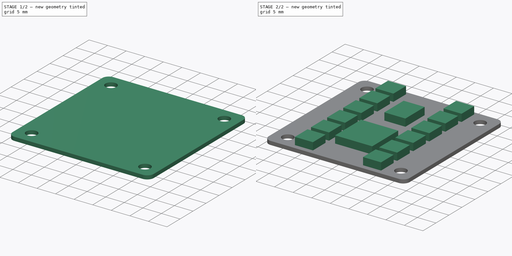
[diagram: build sequence overview — one tinted view per stage of 2, left to right]
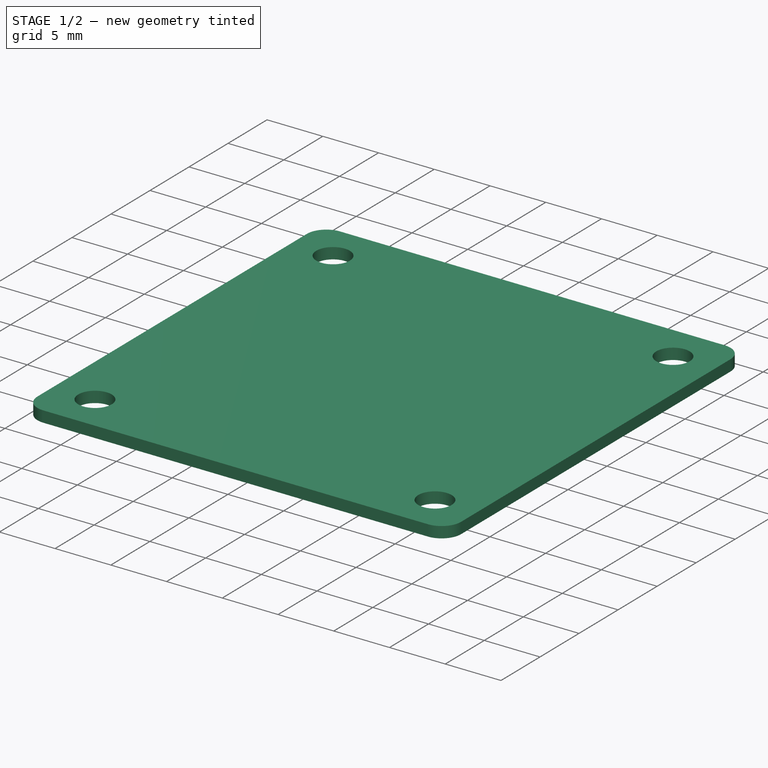
[diagram: stage 1 of 2 — iso view after this stage's code; geometry added in this stage tinted green]
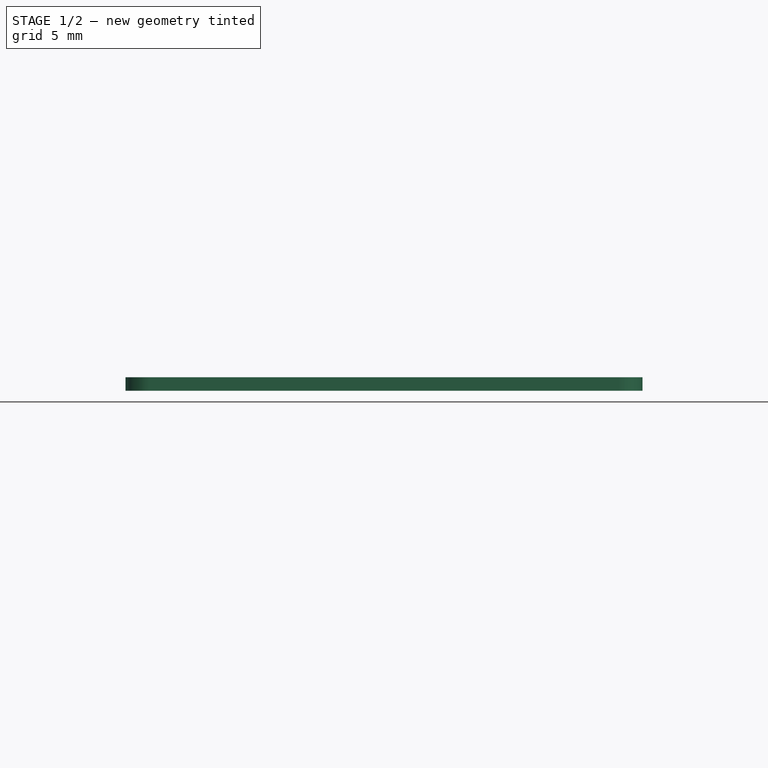
[diagram: stage 1 of 2 — front view after this stage's code; geometry added in this stage tinted green]
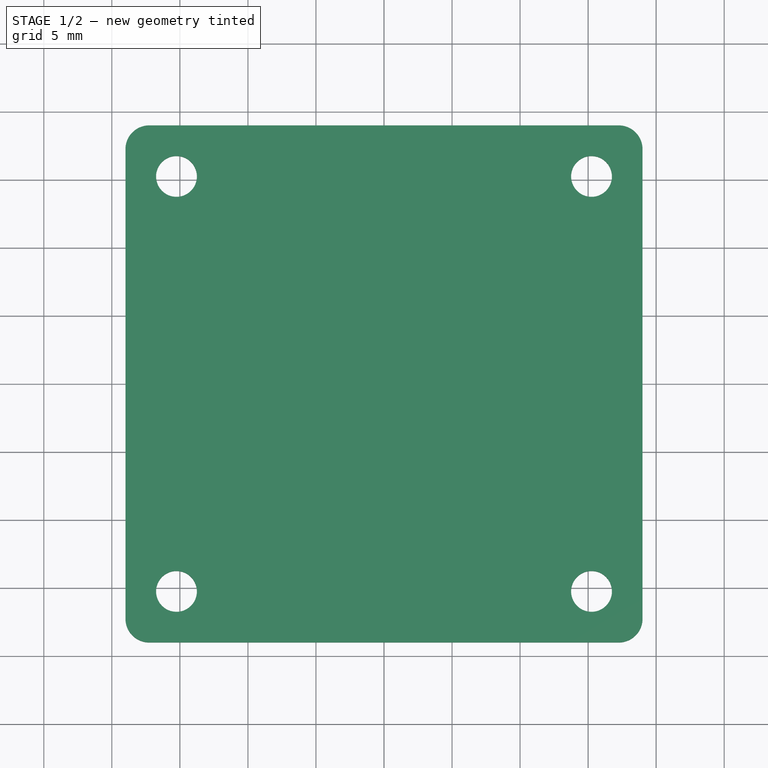
[diagram: stage 1 of 2 — top view after this stage's code; geometry added in this stage tinted green]
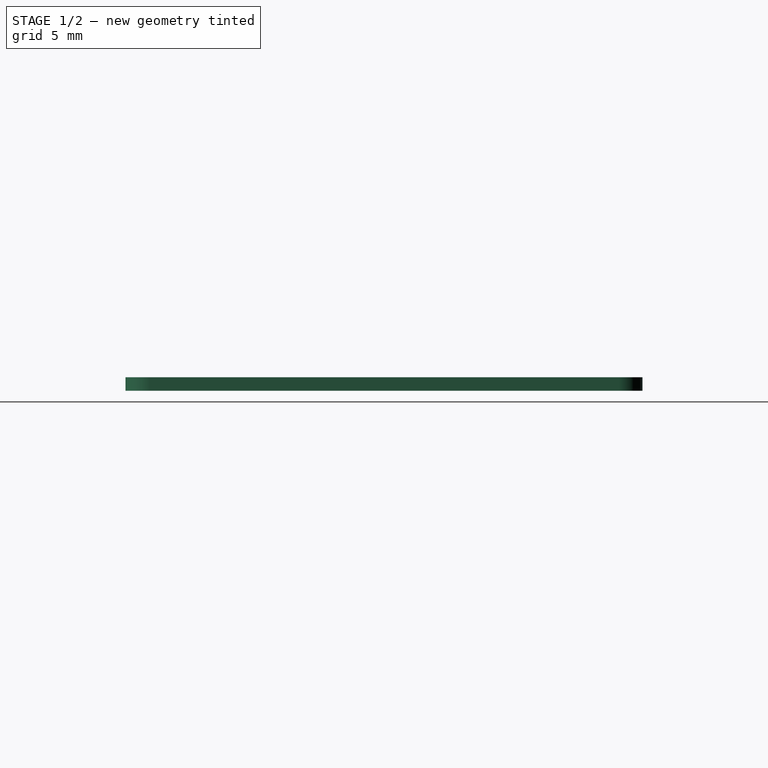
[diagram: stage 1 of 2 — right view after this stage's code; geometry added in this stage tinted green]
FCSTD DOCUMENT  (FreeCAD 0.18RUnknown)
Label: esc
License: All rights reserved
LicenseURL: http://en.wikipedia.org/wiki/All_rights_reserved
objects: Sketcher::SketchObject×2, PartDesign::Pad×2, PartDesign::Body×1
note: 7 computed .brp shape members not serialized (recipe doc carries the construction recipe); baked Part::Feature solids carry a one-line shape summary decoded from their .brp

FEATURE [Sketcher::SketchObject] Sketch
  MapMode = 5
  Support = -> [XY_Plane]
  sketch-geometry (16):
    g0: LineSegment StartX=-17.25 StartY=19 StartZ=0 EndX=17.25 EndY=19 EndZ=0
    g1: LineSegment StartX=19 StartY=17.25 StartZ=0 EndX=19 EndY=-17.25 EndZ=0
    g2: LineSegment StartX=17.25 StartY=-19 StartZ=0 EndX=-17.25 EndY=-19 EndZ=0
    g3: LineSegment StartX=-19 StartY=-17.25 StartZ=0 EndX=-19 EndY=17.25 EndZ=0
    g4: ArcOfCircle CenterX=17.25 CenterY=17.25 CenterZ=0 NormalX=0 NormalY=0 NormalZ=1 AngleXU=0 Radius=1.75 StartAngle=0 EndAngle=1.5708
    g5: ArcOfCircle CenterX=-17.25 CenterY=17.25 CenterZ=0 NormalX=0 NormalY=0 NormalZ=1 AngleXU=0 Radius=1.75 StartAngle=1.5708 EndAngle=3.14159
    g6: ArcOfCircle CenterX=-17.25 CenterY=-17.25 CenterZ=0 NormalX=0 NormalY=0 NormalZ=1 AngleXU=0 Radius=1.75 StartAngle=3.14159 EndAngle=4.71239
    g7: ArcOfCircle CenterX=17.25 CenterY=-17.25 CenterZ=0 NormalX=0 NormalY=0 NormalZ=1 AngleXU=0 Radius=1.75 StartAngle=4.71239 EndAngle=6.28319
    g8: Circle CenterX=15.25 CenterY=15.25 CenterZ=0 NormalX=0 NormalY=0 NormalZ=1 AngleXU=0 Radius=1.5
    g9: Circle CenterX=-15.25 CenterY=-15.25 CenterZ=0 NormalX=0 NormalY=0 NormalZ=1 AngleXU=0 Radius=1.5
    g10: Circle CenterX=-15.25 CenterY=15.25 CenterZ=0 NormalX=0 NormalY=0 NormalZ=1 AngleXU=0 Radius=1.5
    g11: Circle CenterX=15.25 CenterY=-15.25 CenterZ=0 NormalX=0 NormalY=0 NormalZ=1 AngleXU=0 Radius=1.5
    g12: LineSegment [constr] StartX=-15.25 StartY=15.25 StartZ=0 EndX=15.25 EndY=15.25 EndZ=0
    g13: LineSegment [constr] StartX=15.25 StartY=15.25 StartZ=0 EndX=15.25 EndY=-15.25 EndZ=0
    g14: LineSegment [constr] StartX=15.25 StartY=-15.25 StartZ=0 EndX=-15.25 EndY=-15.25 EndZ=0
    g15: LineSegment [constr] StartX=-15.25 StartY=-15.25 StartZ=0 EndX=-15.25 EndY=15.25 EndZ=0
  constraints (37):
    c: Horizontal(g0)
    c: Vertical(g1)
    c: Vertical(g3)
    c: Tangent(g0,g4) = 1.5708
    c: Tangent(g1,g4) = 1.5708
    c: Tangent(g3,g5) = 1.5708
    c: Tangent(g0,g5) = 1.5708
    c: Tangent(g3,g6) = 1.5708
    c: Tangent(g2,g6) = 1.5708
    c: Tangent(g2,g7) = 1.5708
    c: Tangent(g1,g7) = 1.5708
    c: DistanceY(g2,g0) = 38
    c: Symmetric(g0,g2,g-1)
    c: Symmetric(g0,g2,g-1)
    c: Equal(g4,g5)
    c: Equal(g5,g6)
    c: Radius(g7) = 1.75
    c: DistanceX(g3,g1) = 38
    c: DistanceX(g9,g11) = 30.5
    c: Symmetric(g8,g9,g-1)
    c: Symmetric(g11,g10,g-1)
    c: Equal(g10,g8)
    c: Equal(g8,g11)
    c: Equal(g11,g9)
    c: Radius(g8) = 1.5
    c: Coincident(g12,g13)
    c: Coincident(g13,g14)
    c: Coincident(g14,g15)
    c: Coincident(g15,g12)
    c: Horizontal(g12)
    c: Horizontal(g14)
    c: Vertical(g13)
    c: Vertical(g15)
    c: Coincident(g12,g10)
    c: Coincident(g13,g11)
    c: Coincident(g14,g9)
    c: Equal(g13,g14)
FEATURE [PartDesign::Pad] Pad
  Length = 1
  Length2 = 100
  Profile = -> Sketch
  Type = 0
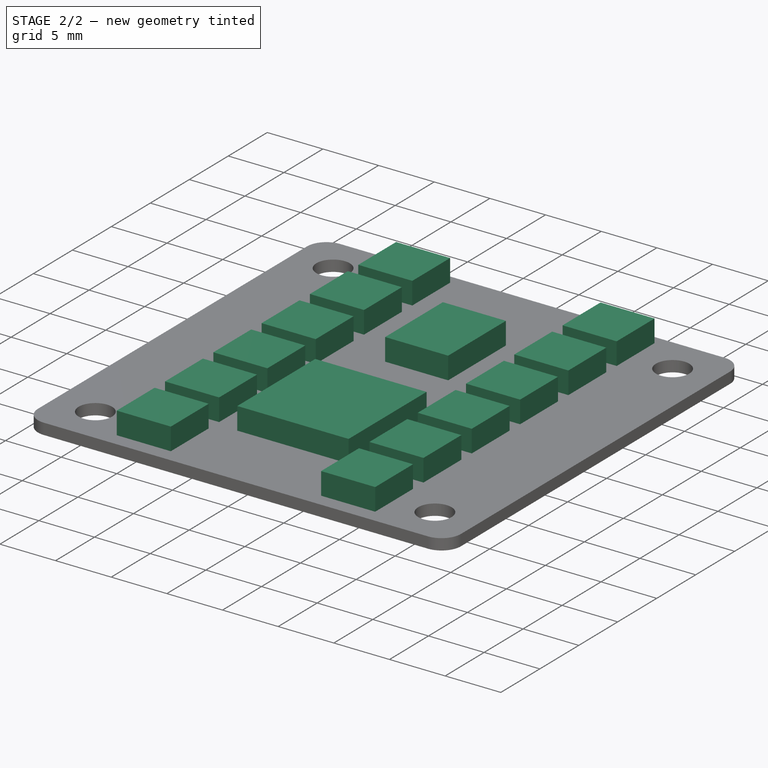
[diagram: stage 2 of 2 — iso view after this stage's code; geometry added in this stage tinted green]
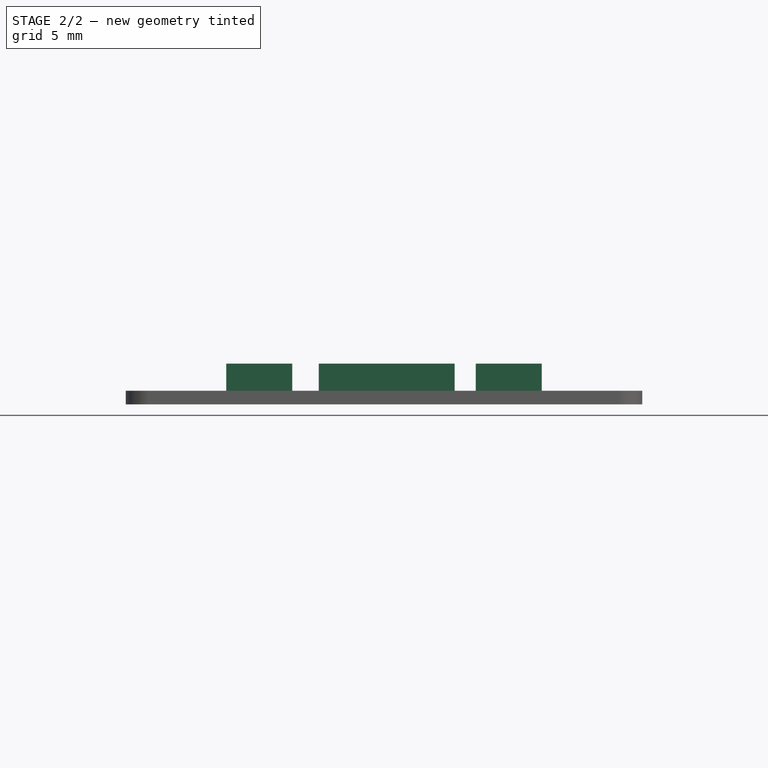
[diagram: stage 2 of 2 — front view after this stage's code; geometry added in this stage tinted green]
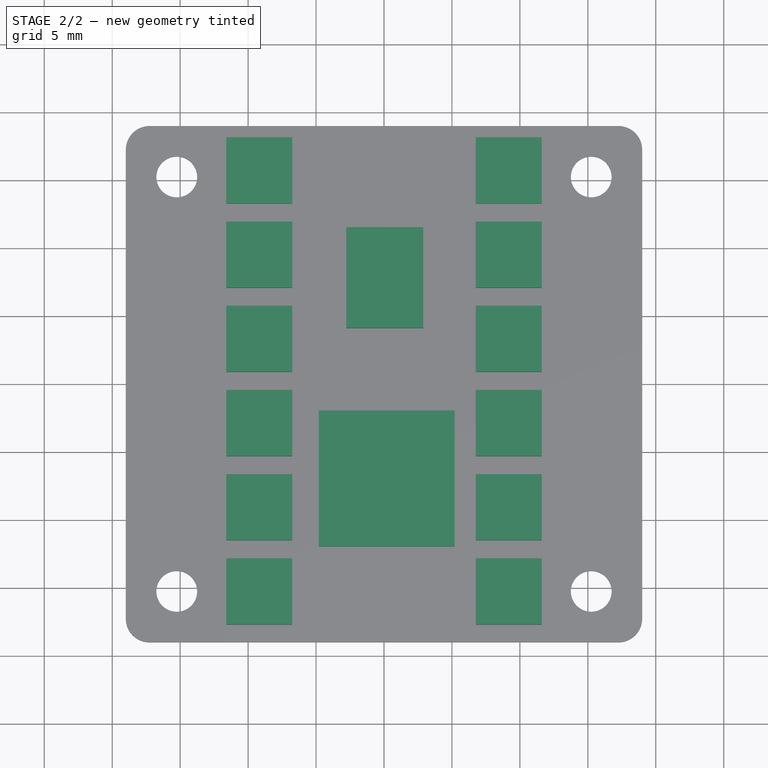
[diagram: stage 2 of 2 — top view after this stage's code; geometry added in this stage tinted green]
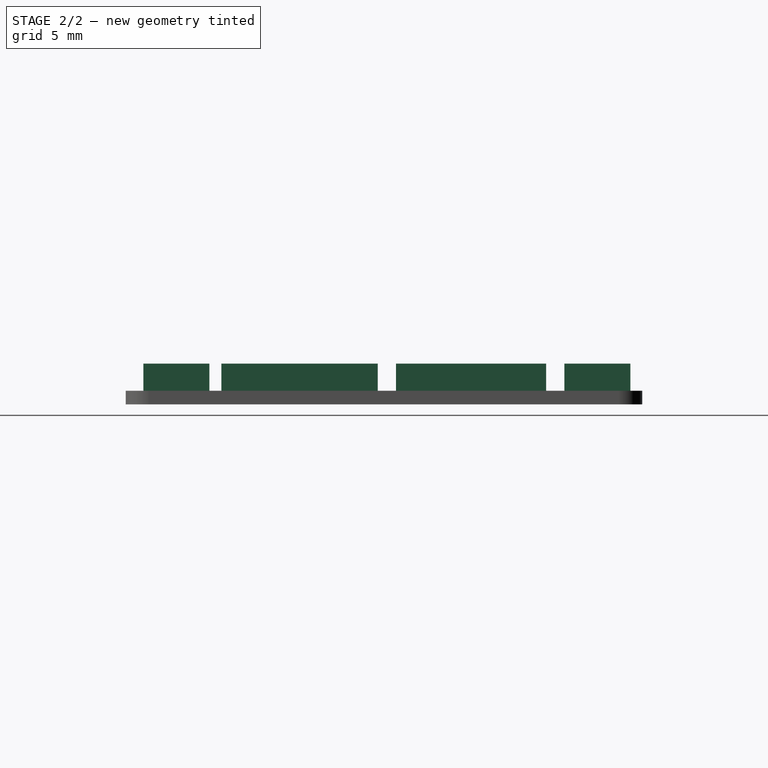
[diagram: stage 2 of 2 — right view after this stage's code; geometry added in this stage tinted green]
FEATURE [Sketcher::SketchObject] Sketch001
  MapMode = 5
  Placement = pos=(0,0,1) rot=(0,0,1;0rad)
  Support = -> [Pad]
  sketch-geometry (66):
    g0: LineSegment StartX=-4.80117 StartY=-1.96399 StartZ=0 EndX=5.19883 EndY=-1.96399 EndZ=0
    g1: LineSegment StartX=5.19883 StartY=-1.96399 StartZ=0 EndX=5.19883 EndY=-11.964 EndZ=0
    g2: LineSegment StartX=5.19883 StartY=-11.964 StartZ=0 EndX=-4.80117 EndY=-11.964 EndZ=0
    g3: LineSegment StartX=-4.80117 StartY=-11.964 StartZ=0 EndX=-4.80117 EndY=-1.96399 EndZ=0
    g4: LineSegment StartX=-11.6086 StartY=18.1299 StartZ=0 EndX=-6.75088 EndY=18.1299 EndZ=0
    g5: LineSegment StartX=-6.75088 StartY=18.1299 StartZ=0 EndX=-6.75088 EndY=13.2722 EndZ=0
    g6: LineSegment StartX=-6.75088 StartY=13.2722 StartZ=0 EndX=-11.6086 EndY=13.2722 EndZ=0
    g7: LineSegment StartX=-11.6086 StartY=13.2722 StartZ=0 EndX=-11.6086 EndY=18.1299 EndZ=0
    g8: LineSegment StartX=2.88438 StartY=11.5222 StartZ=0 EndX=-2.77782 EndY=11.5222 EndZ=0
    g9: LineSegment StartX=-2.77782 StartY=11.5222 StartZ=0 EndX=-2.77782 EndY=4.11321 EndZ=0
    g10: LineSegment StartX=-2.77782 StartY=4.11321 StartZ=0 EndX=2.88437 EndY=4.11321 EndZ=0
    g11: LineSegment StartX=2.88438 StartY=4.11321 StartZ=0 EndX=2.88438 EndY=11.5222 EndZ=0
    g12: LineSegment StartX=-11.6086 StartY=11.9338 StartZ=0 EndX=-6.75088 EndY=11.9338 EndZ=0
    g13: LineSegment StartX=-6.75088 StartY=11.9338 StartZ=0 EndX=-6.75088 EndY=7.07605 EndZ=0
    g14: LineSegment StartX=-6.75088 StartY=7.07605 StartZ=0 EndX=-11.6086 EndY=7.07605 EndZ=0
    g15: LineSegment StartX=-11.6086 StartY=7.07605 StartZ=0 EndX=-11.6086 EndY=11.9338 EndZ=0
    g16: LineSegment [constr] StartX=-11.6086 StartY=18.1299 StartZ=0 EndX=-11.6086 EndY=11.9338 EndZ=0
    g17: LineSegment StartX=-11.6086 StartY=5.73763 StartZ=0 EndX=-6.75088 EndY=5.73763 EndZ=0
    g18: LineSegment StartX=-6.75088 StartY=5.73763 StartZ=0 EndX=-6.75088 EndY=0.87989 EndZ=0
    g19: LineSegment StartX=-6.75088 StartY=0.87989 StartZ=0 EndX=-11.6086 EndY=0.87989 EndZ=0
    g20: LineSegment StartX=-11.6086 StartY=0.87989 StartZ=0 EndX=-11.6086 EndY=5.73763 EndZ=0
    g21: LineSegment [constr] StartX=-11.6086 StartY=11.9338 StartZ=0 EndX=-11.6086 EndY=5.73763 EndZ=0
    g22: LineSegment StartX=-11.6086 StartY=-0.458529 StartZ=0 EndX=-6.75088 EndY=-0.458529 EndZ=0
    g23: LineSegment StartX=-6.75088 StartY=-0.458529 StartZ=0 EndX=-6.75088 EndY=-5.31627 EndZ=0
    g24: LineSegment StartX=-6.75088 StartY=-5.31627 StartZ=0 EndX=-11.6086 EndY=-5.31627 EndZ=0
    g25: LineSegment StartX=-11.6086 StartY=-5.31627 StartZ=0 EndX=-11.6086 EndY=-0.458529 EndZ=0
    g26: LineSegment [constr] StartX=-11.6086 StartY=5.73763 StartZ=0 EndX=-11.6086 EndY=-0.458529 EndZ=0
    g27: LineSegment StartX=-11.6086 StartY=-6.65469 StartZ=0 EndX=-6.75088 EndY=-6.65469 EndZ=0
    g28: LineSegment StartX=-6.75088 StartY=-6.65469 StartZ=0 EndX=-6.75088 EndY=-11.5124 EndZ=0
    g29: LineSegment StartX=-6.75088 StartY=-11.5124 StartZ=0 EndX=-11.6086 EndY=-11.5124 EndZ=0
    g30: LineSegment StartX=-11.6086 StartY=-11.5124 StartZ=0 EndX=-11.6086 EndY=-6.65469 EndZ=0
    g31: LineSegment [constr] StartX=-11.6086 StartY=-0.458529 StartZ=0 EndX=-11.6086 EndY=-6.65469 EndZ=0
    g32: LineSegment StartX=-11.6086 StartY=-12.8508 StartZ=0 EndX=-6.75088 EndY=-12.8508 EndZ=0
    g33: LineSegment StartX=-6.75088 StartY=-12.8508 StartZ=0 EndX=-6.75088 EndY=-17.7086 EndZ=0
    g34: LineSegment StartX=-6.75088 StartY=-17.7086 StartZ=0 EndX=-11.6086 EndY=-17.7086 EndZ=0
    g35: LineSegment StartX=-11.6086 StartY=-17.7086 StartZ=0 EndX=-11.6086 EndY=-12.8508 EndZ=0
    g36: LineSegment [constr] StartX=-11.6086 StartY=-6.65469 StartZ=0 EndX=-11.6086 EndY=-12.8508 EndZ=0
    g37: LineSegment StartX=11.6086 StartY=18.1299 StartZ=0 EndX=6.75088 EndY=18.1299 EndZ=0
    g38: LineSegment StartX=6.75088 StartY=18.1299 StartZ=0 EndX=6.75088 EndY=13.2722 EndZ=0
    g39: LineSegment StartX=6.75088 StartY=13.2722 StartZ=0 EndX=11.6086 EndY=13.2722 EndZ=0
    g40: LineSegment StartX=11.6086 StartY=13.2722 StartZ=0 EndX=11.6086 EndY=18.1299 EndZ=0
    g41: LineSegment StartX=11.6086 StartY=11.9338 StartZ=0 EndX=6.75088 EndY=11.9338 EndZ=0
    g42: LineSegment StartX=6.75088 StartY=11.9338 StartZ=0 EndX=6.75088 EndY=7.07605 EndZ=0
    g43: LineSegment StartX=6.75088 StartY=7.07605 StartZ=0 EndX=11.6086 EndY=7.07605 EndZ=0
    g44: LineSegment StartX=11.6086 StartY=7.07605 StartZ=0 EndX=11.6086 EndY=11.9338 EndZ=0
    g45: LineSegment [constr] StartX=11.6086 StartY=18.1299 StartZ=0 EndX=11.6086 EndY=11.9338 EndZ=0
    g46: LineSegment StartX=11.6086 StartY=5.73763 StartZ=0 EndX=6.75088 EndY=5.73763 EndZ=0
    g47: LineSegment StartX=6.75088 StartY=5.73763 StartZ=0 EndX=6.75088 EndY=0.87989 EndZ=0
    g48: LineSegment StartX=6.75088 StartY=0.87989 StartZ=0 EndX=11.6086 EndY=0.87989 EndZ=0
    g49: LineSegment StartX=11.6086 StartY=0.87989 StartZ=0 EndX=11.6086 EndY=5.73763 EndZ=0
    g50: LineSegment [constr] StartX=11.6086 StartY=11.9338 StartZ=0 EndX=11.6086 EndY=5.73763 EndZ=0
    g51: LineSegment StartX=11.6086 StartY=-0.458529 StartZ=0 EndX=6.75088 EndY=-0.458529 EndZ=0
    g52: LineSegment StartX=6.75088 StartY=-0.458529 StartZ=0 EndX=6.75088 EndY=-5.31627 EndZ=0
    g53: LineSegment StartX=6.75088 StartY=-5.31627 StartZ=0 EndX=11.6086 EndY=-5.31627 EndZ=0
    g54: LineSegment StartX=11.6086 StartY=-5.31627 StartZ=0 EndX=11.6086 EndY=-0.458529 EndZ=0
    g55: LineSegment [constr] StartX=11.6086 StartY=5.73763 StartZ=0 EndX=11.6086 EndY=-0.458529 EndZ=0
    g56: LineSegment StartX=11.6086 StartY=-6.65469 StartZ=0 EndX=6.75088 EndY=-6.65469 EndZ=0
    g57: LineSegment StartX=6.75088 StartY=-6.65469 StartZ=0 EndX=6.75088 EndY=-11.5124 EndZ=0
    g58: LineSegment StartX=6.75088 StartY=-11.5124 StartZ=0 EndX=11.6086 EndY=-11.5124 EndZ=0
    g59: LineSegment StartX=11.6086 StartY=-11.5124 StartZ=0 EndX=11.6086 EndY=-6.65469 EndZ=0
    g60: LineSegment [constr] StartX=11.6086 StartY=-0.458529 StartZ=0 EndX=11.6086 EndY=-6.65469 EndZ=0
    g61: LineSegment StartX=11.6086 StartY=-12.8508 StartZ=0 EndX=6.75088 EndY=-12.8508 EndZ=0
    g62: LineSegment StartX=6.75088 StartY=-12.8508 StartZ=0 EndX=6.75088 EndY=-17.7086 EndZ=0
    g63: LineSegment StartX=6.75088 StartY=-17.7086 StartZ=0 EndX=11.6086 EndY=-17.7086 EndZ=0
    g64: LineSegment StartX=11.6086 StartY=-17.7086 StartZ=0 EndX=11.6086 EndY=-12.8508 EndZ=0
    g65: LineSegment [constr] StartX=11.6086 StartY=-6.65469 StartZ=0 EndX=11.6086 EndY=-12.8508 EndZ=0
  constraints (176):
    c: Coincident(g0,g1)
    c: Coincident(g1,g2)
    c: Coincident(g2,g3)
    c: Coincident(g3,g0)
    c: Horizontal(g0)
    c: Horizontal(g2)
    c: Vertical(g1)
    c: Vertical(g3)
    c: Equal(g0,g1)
    c: DistanceX(g0,g0) = 10
    c: Coincident(g4,g5)
    c: Coincident(g5,g6)
    c: Coincident(g6,g7)
    c: Coincident(g7,g4)
    c: Horizontal(g4)
    c: Horizontal(g6)
    c: Vertical(g5)
    c: Vertical(g7)
    c: Coincident(g8,g9)
    c: Coincident(g9,g10)
    c: Coincident(g10,g11)
    c: Coincident(g11,g8)
    c: Horizontal(g8)
    c: Horizontal(g10)
    c: Vertical(g9)
    c: Vertical(g11)
    c: Equal(g5,g6)
    c: Coincident(g12,g13)
    c: Coincident(g13,g14)
    c: Coincident(g14,g15)
    c: Coincident(g15,g12)
    c: Horizontal(g12)
    c: Horizontal(g14)
    c: Vertical(g13)
    c: Vertical(g15)
    c: Equal(g13,g14)
    c: Coincident(g4,g16)
    c: Coincident(g12,g16)
    c: Distance(g16) = 6.19616
    c: Angle(g16) = -1.5708
    c: Coincident(g17,g18)
    c: Coincident(g18,g19)
    c: Coincident(g19,g20)
    c: Coincident(g20,g17)
    c: Horizontal(g17)
    c: Horizontal(g19)
    c: Vertical(g18)
    c: Vertical(g20)
    c: Equal(g18,g19)
    c: Coincident(g12,g21)
    c: Coincident(g17,g21)
    c: Equal(g16,g21)
    c: Parallel(g21,g16)
    c: Coincident(g22,g23)
    c: Coincident(g23,g24)
    c: Coincident(g24,g25)
    c: Coincident(g25,g22)
    c: Horizontal(g22)
    c: Horizontal(g24)
    c: Vertical(g23)
    c: Vertical(g25)
    c: Equal(g23,g24)
    c: Coincident(g17,g26)
    c: Coincident(g22,g26)
    c: Equal(g16,g26)
    c: Parallel(g26,g16)
    c: Coincident(g27,g28)
    c: Coincident(g28,g29)
    c: Coincident(g29,g30)
    c: Coincident(g30,g27)
    c: Horizontal(g27)
    c: Horizontal(g29)
    c: Vertical(g28)
    c: Vertical(g30)
    c: Equal(g28,g29)
    c: Coincident(g22,g31)
    c: Coincident(g27,g31)
    c: Equal(g16,g31)
    c: Parallel(g31,g16)
    c: Coincident(g32,g33)
    c: Coincident(g33,g34)
    c: Coincident(g34,g35)
    c: Coincident(g35,g32)
    c: Horizontal(g32)
    c: Horizontal(g34)
    c: Vertical(g33)
    c: Vertical(g35)
    c: Equal(g33,g34)
    c: Coincident(g27,g36)
    c: Coincident(g32,g36)
    c: Equal(g16,g36)
    c: Parallel(g36,g16)
    c: Equal(g33,g28)
    c: Equal(g23,g18)
    c: Equal(g18,g13)
    c: Equal(g13,g5)
    c: Equal(g5,g28)
    c: Coincident(g37,g38)
    c: Coincident(g38,g39)
    c: Coincident(g39,g40)
    c: Coincident(g40,g37)
    c: Horizontal(g37)
    c: Horizontal(g39)
    c: Vertical(g38)
    c: Vertical(g40)
    c: Equal(g38,g39)
    c: Coincident(g41,g42)
    c: Coincident(g42,g43)
    c: Coincident(g43,g44)
    c: Coincident(g44,g41)
    c: Horizontal(g41)
    c: Horizontal(g43)
    c: Vertical(g42)
    c: Vertical(g44)
    c: Equal(g42,g43)
    c: Coincident(g37,g45)
    c: Coincident(g41,g45)
    c: Distance(g45) = 6.19616
    c: Angle(g45) = -1.5708
    c: Coincident(g46,g47)
    c: Coincident(g47,g48)
    c: Coincident(g48,g49)
    c: Coincident(g49,g46)
    c: Horizontal(g46)
    c: Horizontal(g48)
    c: Vertical(g47)
    c: Vertical(g49)
    c: Equal(g47,g48)
    c: Coincident(g41,g50)
    c: Coincident(g46,g50)
    c: Equal(g45,g50)
    c: Parallel(g50,g45)
    c: Coincident(g51,g52)
    c: Coincident(g52,g53)
    c: Coincident(g53,g54)
    c: Coincident(g54,g51)
    c: Horizontal(g51)
    c: Horizontal(g53)
    c: Vertical(g52)
    c: Vertical(g54)
    c: Equal(g52,g53)
    c: Coincident(g46,g55)
    c: Coincident(g51,g55)
    c: Equal(g45,g55)
    c: Parallel(g55,g45)
    c: Coincident(g56,g57)
    c: Coincident(g57,g58)
    c: Coincident(g58,g59)
    c: Coincident(g59,g56)
    c: Horizontal(g56)
    c: Horizontal(g58)
    c: Vertical(g57)
    c: Vertical(g59)
    c: Equal(g57,g58)
    c: Coincident(g51,g60)
    c: Coincident(g56,g60)
    c: Equal(g45,g60)
    c: Parallel(g60,g45)
    c: Coincident(g61,g62)
    c: Coincident(g62,g63)
    c: Coincident(g63,g64)
    c: Coincident(g64,g61)
    c: Horizontal(g61)
    c: Horizontal(g63)
    c: Vertical(g62)
    c: Vertical(g64)
    c: Equal(g62,g63)
    c: Coincident(g56,g65)
    c: Coincident(g61,g65)
    c: Equal(g45,g65)
    c: Parallel(g65,g45)
    c: Equal(g62,g57)
    c: Equal(g52,g47)
    c: Equal(g47,g42)
    c: Equal(g42,g38)
    c: Equal(g38,g57)
FEATURE [PartDesign::Pad] Pad001
  BaseFeature = -> Pad
  Length = 2
  Length2 = 100
  Profile = -> Sketch001
  Type = 0
FEATURE [PartDesign::Body] Body
  Group = -> [Sketch,Pad,Sketch001,Pad001]
  Origin = -> Origin
  Tip = -> Pad001
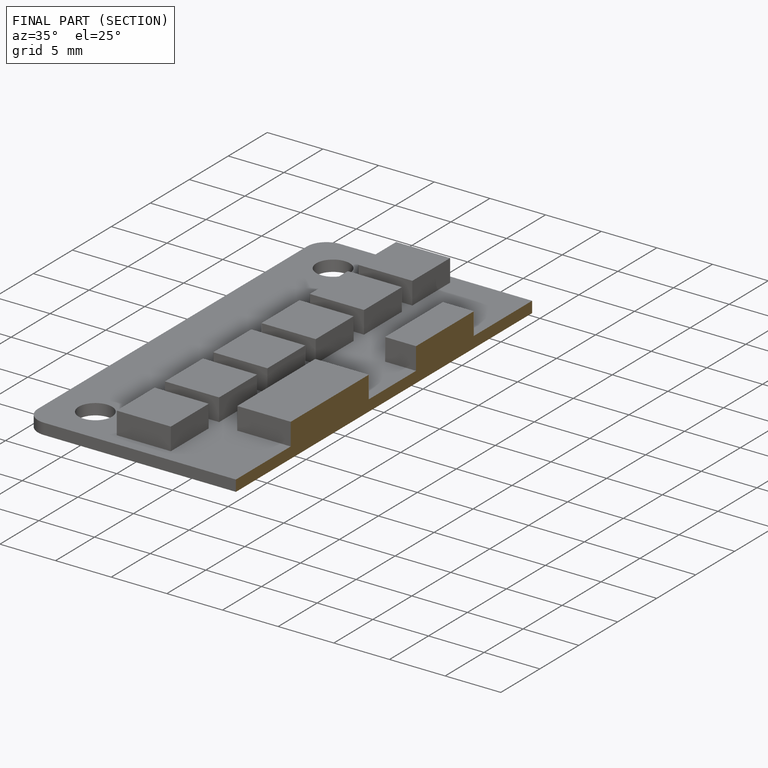
[diagram: finished part — half-section view (interior)]
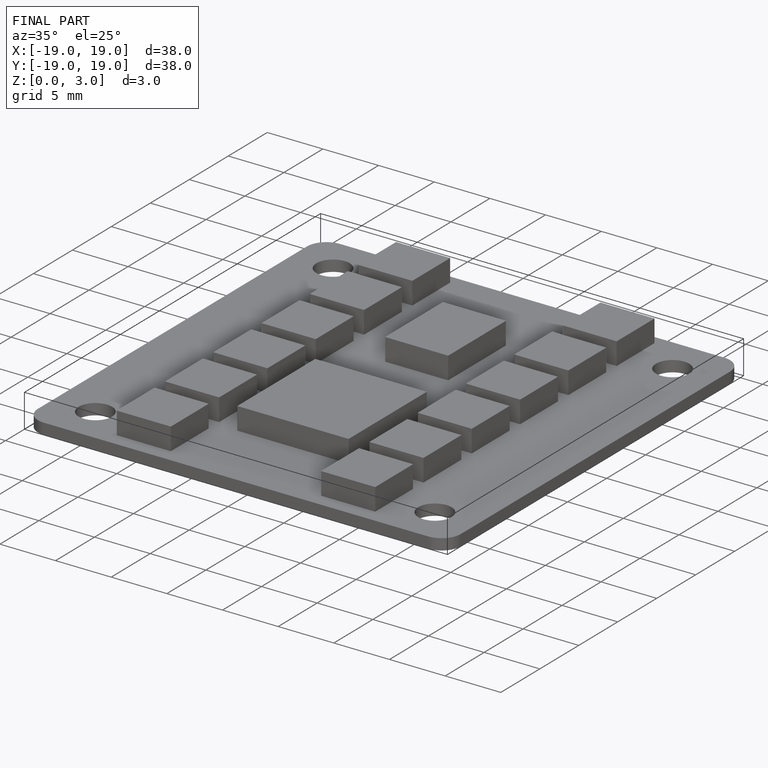
[diagram: finished part — iso view with bounding-box wireframe]
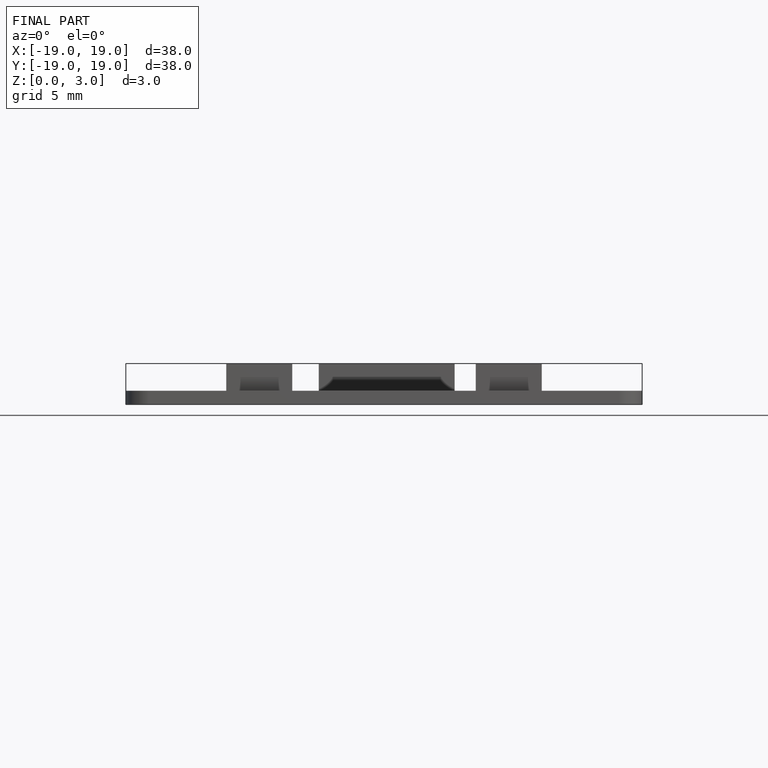
[diagram: finished part — front view with bounding-box wireframe]
